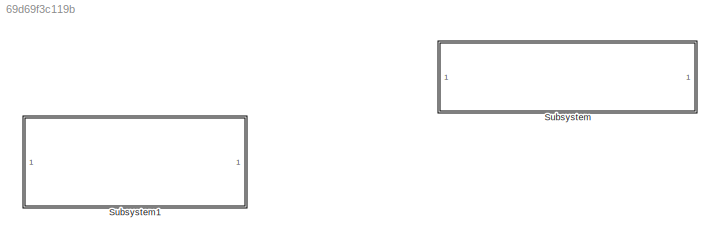
MODEL slx_69d69f3c119b
KIND library
CONFIG AbsTol = auto
CONFIG EnableMultiTasking = off
CONFIG FixedStep = auto
CONFIG MaxStep = auto
CONFIG MinStep = auto
CONFIG RelTol = 1e-3
CONFIG SampleTimeConstraint = Unconstrained
CONFIG SolverName = VariableStepAuto
CONFIG StartTime = 0.0
CONFIG StopTime = 10.0
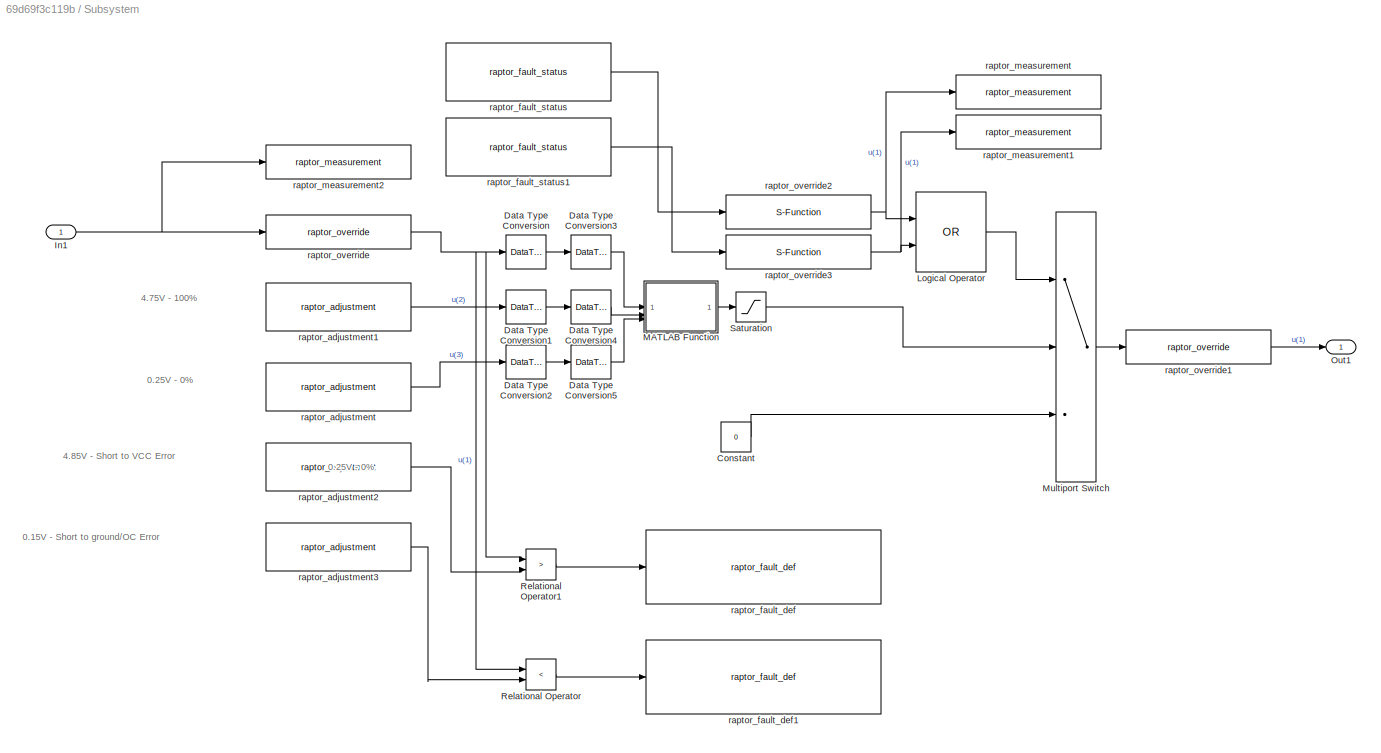
BLOCK [SubSystem] Subsystem
BLOCK [Constant] Subsystem/Constant
  Value = 0
BLOCK [DataTypeConversion] Subsystem/Data Type Conversion
  OutDataTypeStr = uint16
  RndMeth = Floor
  SaturateOnIntegerOverflow = off
BLOCK [DataTypeConversion] Subsystem/Data Type Conversion1
  OutDataTypeStr = uint16
  RndMeth = Floor
  SaturateOnIntegerOverflow = off
BLOCK [DataTypeConversion] Subsystem/Data Type Conversion2
  OutDataTypeStr = uint16
  RndMeth = Floor
  SaturateOnIntegerOverflow = off
BLOCK [DataTypeConversion] Subsystem/Data Type Conversion3
  OutDataTypeStr = double
  RndMeth = Floor
  SaturateOnIntegerOverflow = off
BLOCK [DataTypeConversion] Subsystem/Data Type Conversion4
  OutDataTypeStr = double
  RndMeth = Floor
  SaturateOnIntegerOverflow = off
BLOCK [DataTypeConversion] Subsystem/Data Type Conversion5
  OutDataTypeStr = double
  RndMeth = Floor
  SaturateOnIntegerOverflow = off
BLOCK [Inport] Subsystem/In1
BLOCK [Logic] Subsystem/Logical Operator
  AllPortsSameDT = off
  IconShape = distinctive
  Operator = OR
  OutDataTypeStr = boolean
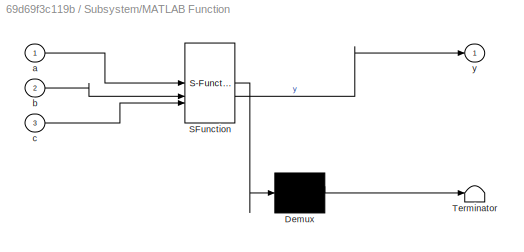
BLOCK [SubSystem] Subsystem/MATLAB Function
  ErrorFcn = Stateflow.Translate.translate
  LibrarySourceBlock = simulink/User-Defined\nFunctions/MATLAB Function
  PermitHierarchicalResolution = ExplicitOnly
  SFBlockType = MATLAB Function
  TreatAsAtomicUnit = on
BLOCK [Demux] Subsystem/MATLAB Function/ Demux 
  Outputs = 1
BLOCK [S-Function] Subsystem/MATLAB Function/ SFunction 
  EnableBusSupport = on
  FunctionName = sf_sfun
  PortCounts = [3 2]
  SFcnIsStateOwnerBlock = off
  SFunctionDeploymentMode = off
  Tag = Stateflow S-Function 2
BLOCK [Terminator] Subsystem/MATLAB Function/ Terminator 
BLOCK [Inport] Subsystem/MATLAB Function/a
BLOCK [Inport] Subsystem/MATLAB Function/b
  Port = 2
BLOCK [Inport] Subsystem/MATLAB Function/c
  Port = 3
BLOCK [Outport] Subsystem/MATLAB Function/y
BLOCK [MultiPortSwitch] Subsystem/Multiport Switch
  DataPortOrder = Zero-based contiguous
  InputSameDT = off
  Inputs = 2
  SaturateOnIntegerOverflow = off
  zeroidx = on
BLOCK [Outport] Subsystem/Out1
BLOCK [RelationalOperator] Subsystem/Relational Operator
  InputSameDT = off
  Operator = <
  OutDataTypeStr = boolean
  RndMeth = Simplest
BLOCK [RelationalOperator] Subsystem/Relational Operator1
  InputSameDT = off
  Operator = >
  OutDataTypeStr = boolean
  RndMeth = Simplest
BLOCK [Saturate] Subsystem/Saturation
  LowerLimit = 0
  UpperLimit = 100
BLOCK [Reference] Subsystem/raptor_adjustment  REF=Raptor_lib/Data Storage/raptor_adjustment
  SourceBlock = Raptor_lib/Data Storage/raptor_adjustment
  SourceProductName = Raptor
  SourceType = Adjustment
BLOCK [Reference] Subsystem/raptor_adjustment1  REF=Raptor_lib/Data Storage/raptor_adjustment
  SourceBlock = Raptor_lib/Data Storage/raptor_adjustment
  SourceProductName = Raptor
  SourceType = Adjustment
BLOCK [Reference] Subsystem/raptor_adjustment2  REF=Raptor_lib/Data Storage/raptor_adjustment
  SourceBlock = Raptor_lib/Data Storage/raptor_adjustment
  SourceProductName = Raptor
  SourceType = Adjustment
BLOCK [Reference] Subsystem/raptor_adjustment3  REF=Raptor_lib/Data Storage/raptor_adjustment
  SourceBlock = Raptor_lib/Data Storage/raptor_adjustment
  SourceProductName = Raptor
  SourceType = Adjustment
BLOCK [Reference] Subsystem/raptor_fault_def  REF=Raptor_lib/Faults/raptor_fault_def
  SourceBlock = Raptor_lib/Faults/raptor_fault_def
  SourceProductName = Raptor
  SourceType = Fault Definition
BLOCK [Reference] Subsystem/raptor_fault_def1  REF=Raptor_lib/Faults/raptor_fault_def
  SourceBlock = Raptor_lib/Faults/raptor_fault_def
  SourceProductName = Raptor
  SourceType = Fault Definition
BLOCK [Reference] Subsystem/raptor_fault_status  REF=Raptor_lib/Faults/raptor_fault_status
  SourceBlock = Raptor_lib/Faults/raptor_fault_status
  SourceProductName = Raptor
  SourceType = Fault Status
BLOCK [Reference] Subsystem/raptor_fault_status1  REF=Raptor_lib/Faults/raptor_fault_status
  SourceBlock = Raptor_lib/Faults/raptor_fault_status
  SourceProductName = Raptor
  SourceType = Fault Status
BLOCK [Reference] Subsystem/raptor_measurement  REF=Raptor_lib/Data Storage/raptor_measurement
  SourceBlock = Raptor_lib/Data Storage/raptor_measurement
  SourceProductName = Raptor
  SourceType = Measurement
BLOCK [Reference] Subsystem/raptor_measurement1  REF=Raptor_lib/Data Storage/raptor_measurement
  SourceBlock = Raptor_lib/Data Storage/raptor_measurement
  SourceProductName = Raptor
  SourceType = Measurement
BLOCK [Reference] Subsystem/raptor_measurement2  REF=Raptor_lib/Data Storage/raptor_measurement
  SourceBlock = Raptor_lib/Data Storage/raptor_measurement
  SourceProductName = Raptor
  SourceType = Measurement
BLOCK [Reference] Subsystem/raptor_override  REF=Raptor_lib/Data Storage/raptor_override
  SourceBlock = Raptor_lib/Data Storage/raptor_override
  SourceProductName = Raptor
  SourceType = Override
BLOCK [Reference] Subsystem/raptor_override1  REF=Raptor_lib/Data Storage/raptor_override
  SourceBlock = Raptor_lib/Data Storage/raptor_override
  SourceProductName = Raptor
  SourceType = Override
BLOCK [S-Function] Subsystem/raptor_override2
  EnableBusSupport = off
  FunctionName = raptor_sfun_override
  MoveFcn = raptor_icon_redraw(gcb);
  Parameters = char({dataName,''}), uint8(calDispType), char(enumName), int32(enumValue), double(calGain), double(calOffset), double(calMax), double(calMin), char(calUnit), char(calHelp), char(calFormat), char(calFunction), char(calAccess), uint8(measurement)
  SFcnIsStateOwnerBlock = off
  SFunctionDeploymentMode = off
BLOCK [S-Function] Subsystem/raptor_override3
  EnableBusSupport = off
  FunctionName = raptor_sfun_override
  MoveFcn = raptor_icon_redraw(gcb);
  Parameters = char({dataName,''}), uint8(calDispType), char(enumName), int32(enumValue), double(calGain), double(calOffset), double(calMax), double(calMin), char(calUnit), char(calHelp), char(calFormat), char(calFunction), char(calAccess), uint8(measurement)
  SFcnIsStateOwnerBlock = off
  SFunctionDeploymentMode = off
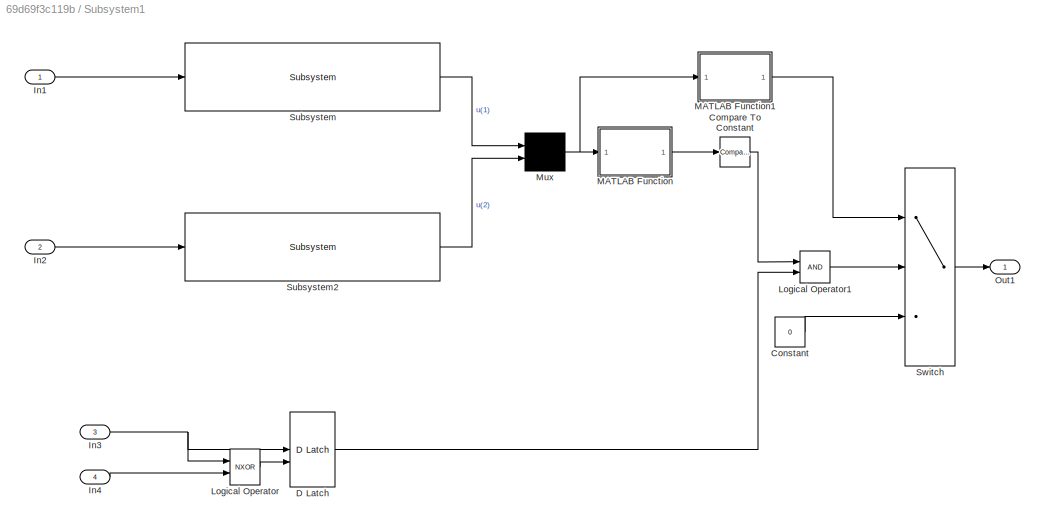
BLOCK [SubSystem] Subsystem1
BLOCK [Reference] Subsystem1/Compare To Constant  REF=simulink/Logic and Bit
Operations/Compare
To Constant
  SourceBlock = simulink/Logic and Bit\nOperations/Compare\nTo Constant
  SourceType = Compare To Constant
BLOCK [Constant] Subsystem1/Constant
  Value = 0
BLOCK [Reference] Subsystem1/D Latch  REF=simulink_extras/Flip Flops/D Latch
  SourceBlock = simulink_extras/Flip Flops/D Latch
  SourceType = DLatch
BLOCK [Inport] Subsystem1/In1
BLOCK [Inport] Subsystem1/In2
  Port = 2
BLOCK [Inport] Subsystem1/In3
  Port = 3
BLOCK [Inport] Subsystem1/In4
  Port = 4
BLOCK [Logic] Subsystem1/Logical Operator
  AllPortsSameDT = off
  IconShape = distinctive
  Operator = NXOR
  OutDataTypeStr = boolean
BLOCK [Logic] Subsystem1/Logical Operator1
  AllPortsSameDT = off
  IconShape = distinctive
  OutDataTypeStr = boolean
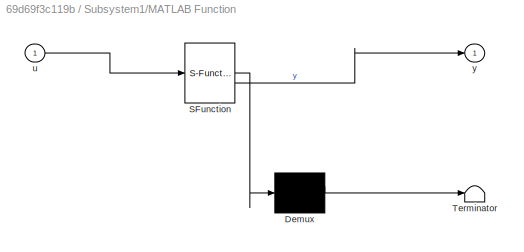
BLOCK [SubSystem] Subsystem1/MATLAB Function
  ErrorFcn = Stateflow.Translate.translate
  LibrarySourceBlock = simulink/User-Defined\nFunctions/MATLAB Function
  PermitHierarchicalResolution = ExplicitOnly
  SFBlockType = MATLAB Function
  TreatAsAtomicUnit = on
BLOCK [Demux] Subsystem1/MATLAB Function/ Demux 
  Outputs = 1
BLOCK [S-Function] Subsystem1/MATLAB Function/ SFunction 
  EnableBusSupport = on
  FunctionName = sf_sfun
  PortCounts = [1 2]
  SFcnIsStateOwnerBlock = off
  SFunctionDeploymentMode = off
  Tag = Stateflow S-Function 3
BLOCK [Terminator] Subsystem1/MATLAB Function/ Terminator 
BLOCK [Inport] Subsystem1/MATLAB Function/u
BLOCK [Outport] Subsystem1/MATLAB Function/y
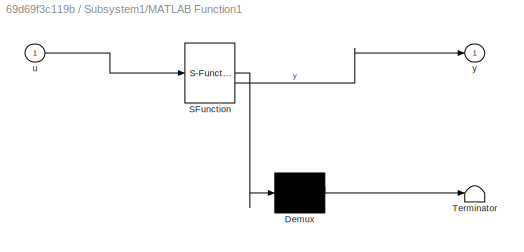
BLOCK [SubSystem] Subsystem1/MATLAB Function1
  ErrorFcn = Stateflow.Translate.translate
  LibrarySourceBlock = simulink/User-Defined\nFunctions/MATLAB Function
  PermitHierarchicalResolution = ExplicitOnly
  SFBlockType = MATLAB Function
  TreatAsAtomicUnit = on
BLOCK [Demux] Subsystem1/MATLAB Function1/ Demux 
  Outputs = 1
BLOCK [S-Function] Subsystem1/MATLAB Function1/ SFunction 
  EnableBusSupport = on
  FunctionName = sf_sfun
  PortCounts = [1 2]
  SFcnIsStateOwnerBlock = off
  SFunctionDeploymentMode = off
  Tag = Stateflow S-Function 4
BLOCK [Terminator] Subsystem1/MATLAB Function1/ Terminator 
BLOCK [Inport] Subsystem1/MATLAB Function1/u
BLOCK [Outport] Subsystem1/MATLAB Function1/y
BLOCK [Mux] Subsystem1/Mux
  DisplayOption = signals
  Inputs = 2
BLOCK [Outport] Subsystem1/Out1
BLOCK [Reference] Subsystem1/Subsystem  REF=$bdroot/Subsystem
  SourceBlock = $bdroot/Subsystem
BLOCK [Reference] Subsystem1/Subsystem2  REF=$bdroot/Subsystem
  SourceBlock = $bdroot/Subsystem
BLOCK [Switch] Subsystem1/Switch
  InputSameDT = off
  SaturateOnIntegerOverflow = off
  Threshold = 1
ANNOTATION Subsystem: 0.15V - Short to ground/OC Error
ANNOTATION Subsystem: 0.25V - 0%
ANNOTATION Subsystem: 4.75V - 100%
ANNOTATION Subsystem: 4.85V - Short to VCC Error
LINE Subsystem/Constant:1 -> Subsystem/Multiport Switch:3
LINE Subsystem/Data Type Conversion1:1 -> Subsystem/Data Type Conversion4:1
LINE Subsystem/Data Type Conversion2:1 -> Subsystem/Data Type Conversion5:1
LINE Subsystem/Data Type Conversion3:1 -> Subsystem/MATLAB Function:1
LINE Subsystem/Data Type Conversion4:1 -> Subsystem/MATLAB Function:2
LINE Subsystem/Data Type Conversion5:1 -> Subsystem/MATLAB Function:3
LINE Subsystem/Data Type Conversion:1 -> Subsystem/Data Type Conversion3:1
NET Subsystem/In1:1 -> Subsystem/raptor_measurement2:1, Subsystem/raptor_override:1
LINE Subsystem/Logical Operator:1 -> Subsystem/Multiport Switch:1
LINE Subsystem/MATLAB Function:1 -> Subsystem/Saturation:1
LINE Subsystem/Multiport Switch:1 -> Subsystem/raptor_override1:1
LINE Subsystem/Relational Operator1:1 -> Subsystem/raptor_fault_def:1
LINE Subsystem/Relational Operator:1 -> Subsystem/raptor_fault_def1:1
LINE Subsystem/Saturation:1 -> Subsystem/Multiport Switch:2
LINE Subsystem/raptor_adjustment1:1 -> Subsystem/Data Type Conversion1:1
LINE Subsystem/raptor_adjustment2:1 -> Subsystem/Relational Operator1:2
LINE Subsystem/raptor_adjustment3:1 -> Subsystem/Relational Operator:2
LINE Subsystem/raptor_adjustment:1 -> Subsystem/Data Type Conversion2:1
LINE Subsystem/raptor_fault_status1:1 -> Subsystem/raptor_override3:1
LINE Subsystem/raptor_fault_status:1 -> Subsystem/raptor_override2:1
LINE Subsystem/raptor_override1:1 -> Subsystem/Out1:1
NET Subsystem/raptor_override2:1 -> Subsystem/Logical Operator:1, Subsystem/raptor_measurement:1
NET Subsystem/raptor_override3:1 -> Subsystem/Logical Operator:2, Subsystem/raptor_measurement1:1
NET Subsystem/raptor_override:1 -> Subsystem/Data Type Conversion:1, Subsystem/Relational Operator1:1, Subsystem/Relational Operator:1
LINE Subsystem1/Compare To Constant:1 -> Subsystem1/Logical Operator1:1
LINE Subsystem1/Constant:1 -> Subsystem1/Switch:3
LINE Subsystem1/D Latch:1 -> Subsystem1/Logical Operator1:2
LINE Subsystem1/In1:1 -> Subsystem1/Subsystem:1
LINE Subsystem1/In2:1 -> Subsystem1/Subsystem2:1
NET Subsystem1/In3:1 -> Subsystem1/D Latch:1, Subsystem1/Logical Operator:1
LINE Subsystem1/In4:1 -> Subsystem1/Logical Operator:2
LINE Subsystem1/Logical Operator1:1 -> Subsystem1/Switch:2
LINE Subsystem1/Logical Operator:1 -> Subsystem1/D Latch:2
LINE Subsystem1/MATLAB Function1:1 -> Subsystem1/Switch:1
LINE Subsystem1/MATLAB Function:1 -> Subsystem1/Compare To Constant:1
NET Subsystem1/Mux:1 -> Subsystem1/MATLAB Function1:1, Subsystem1/MATLAB Function:1
LINE Subsystem1/Subsystem2:1 -> Subsystem1/Mux:2
LINE Subsystem1/Subsystem:1 -> Subsystem1/Mux:1
LINE Subsystem1/Switch:1 -> Subsystem1/Out1:1
note: NET lines group one-source signal fan-out (src -> all destinations, sorted); 1:1 wires keep LINE
CHART Subsystem1/MATLAB Function states=1 transitions=1
  STATE_LABEL 'eML_blk_kernel()'
  STATE_LABEL 'SCRIPT:\nfunction y = fcn(u)\ny = abs(u(2)-u(1));\nend\n'
CHART Subsystem1/MATLAB Function1 states=1 transitions=1
  STATE_LABEL 'eML_blk_kernel()'
  STATE_LABEL 'SCRIPT:\nfunction y = fcn(u)\ny = (u(2)+u(1))/2;\nend\n'
CHART Subsystem/MATLAB Function states=1 transitions=1
  STATE_LABEL 'eML_blk_kernel()'
  STATE_LABEL 'SCRIPT:\nfunction y = fcn(a,b,c)\ny = ((a-c)/(b-c));\nend\n'
CHART  states=0 transitions=0
CHART  states=0 transitions=0
CHART  states=0 transitions=0
